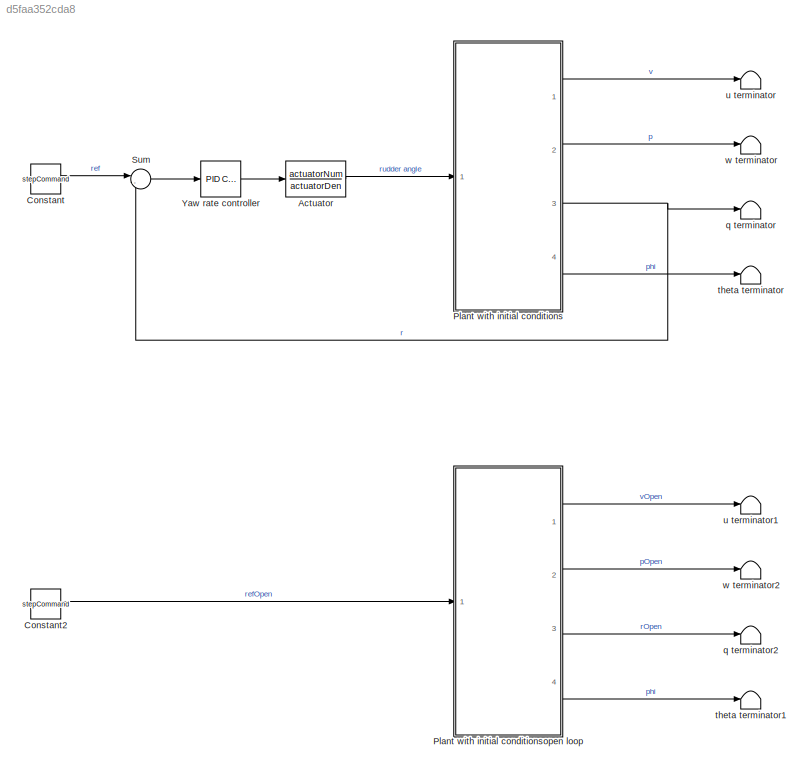
MODEL slx_d5faa352cda8
KIND model
CONFIG AbsTol = auto
CONFIG EnableMultiTasking = off
CONFIG FixedStep = auto
CONFIG MaxStep = auto
CONFIG MinStep = auto
CONFIG RelTol = 1e-3
CONFIG SampleTimeConstraint = Unconstrained
CONFIG SolverName = ode15s
CONFIG StartTime = 0.0
CONFIG StopTime = 2.5
BLOCK [TransferFcn] Actuator
  Denominator = actuatorDen
  Numerator = actuatorNum
BLOCK [Constant] Constant
  NameLocation = top
  Value = stepCommand
BLOCK [Constant] Constant2
  NameLocation = top
  Value = stepCommand
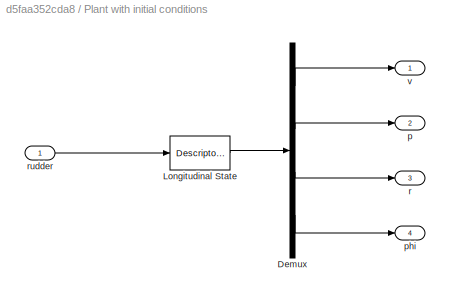
BLOCK [SubSystem] Plant with initial conditions
  Ports = [1, 4]
  RequestExecContextInheritance = off
BLOCK [Demux] Plant with initial conditions/Demux
  Ports = [1, 4]
BLOCK [DescriptorStateSpace] Plant with initial conditions/Longitudinal State 
  A = ALat
  B = BLat
  C = CLat
  ContinuousStateAttributes = 'LateralSystem'
  D = DLat
  E = ELat
  InitialCondition = InitialConditions
  Ports = [1, 1]
BLOCK [Outport] Plant with initial conditions/p
  Port = 2
BLOCK [Outport] Plant with initial conditions/phi
  Port = 4
BLOCK [Outport] Plant with initial conditions/r
  Port = 3
BLOCK [Inport] Plant with initial conditions/rudder
BLOCK [Outport] Plant with initial conditions/v
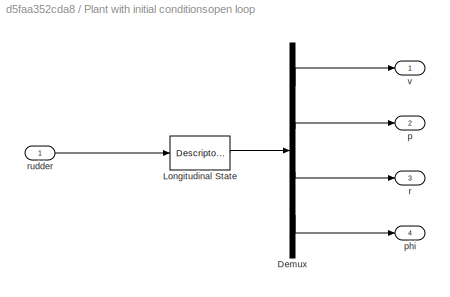
BLOCK [SubSystem] Plant with initial conditionsopen loop
  Ports = [1, 4]
  RequestExecContextInheritance = off
BLOCK [Demux] Plant with initial conditionsopen loop/Demux
  Ports = [1, 4]
BLOCK [DescriptorStateSpace] Plant with initial conditionsopen loop/Longitudinal State 
  A = ALat
  B = BLat
  C = CLat
  ContinuousStateAttributes = 'LongitudinalSystem'
  D = DLat
  E = ELat
  InitialCondition = InitialConditions
  Ports = [1, 1]
BLOCK [Outport] Plant with initial conditionsopen loop/p
  Port = 2
BLOCK [Outport] Plant with initial conditionsopen loop/phi
  Port = 4
BLOCK [Outport] Plant with initial conditionsopen loop/r
  Port = 3
BLOCK [Inport] Plant with initial conditionsopen loop/rudder
BLOCK [Outport] Plant with initial conditionsopen loop/v
BLOCK [Sum] Sum
  Inputs = |-+
  Ports = [2, 1]
BLOCK [Reference] Yaw rate controller  REF=slpidlib/PID Controller
  Ports = [1, 1]
  SourceBlock = slpidlib/PID Controller
  SourceProductBaseCode = SL
  SourceType = PID 1dof
BLOCK [Terminator] q terminator
BLOCK [Terminator] q terminator2
BLOCK [Terminator] theta terminator
BLOCK [Terminator] theta terminator1
BLOCK [Terminator] u terminator
BLOCK [Terminator] u terminator1
BLOCK [Terminator] w terminator
BLOCK [Terminator] w terminator2
LINE Actuator:1 -> Plant with initial conditions:1
LINE Constant2:1 -> Plant with initial conditionsopen loop:1
LINE Constant:1 -> Sum:1
LINE Plant with initial conditions/Demux:1 -> Plant with initial conditions/v:1
LINE Plant with initial conditions/Demux:2 -> Plant with initial conditions/p:1
LINE Plant with initial conditions/Demux:3 -> Plant with initial conditions/r:1
LINE Plant with initial conditions/Demux:4 -> Plant with initial conditions/phi:1
LINE Plant with initial conditions/Longitudinal State :1 -> Plant with initial conditions/Demux:1
LINE Plant with initial conditions/rudder:1 -> Plant with initial conditions/Longitudinal State :1
LINE Plant with initial conditions:1 -> u terminator:1
LINE Plant with initial conditions:2 -> w terminator:1
NET Plant with initial conditions:3 -> Sum:2, q terminator:1
LINE Plant with initial conditions:4 -> theta terminator:1
LINE Plant with initial conditionsopen loop/Demux:1 -> Plant with initial conditionsopen loop/v:1
LINE Plant with initial conditionsopen loop/Demux:2 -> Plant with initial conditionsopen loop/p:1
LINE Plant with initial conditionsopen loop/Demux:3 -> Plant with initial conditionsopen loop/r:1
LINE Plant with initial conditionsopen loop/Demux:4 -> Plant with initial conditionsopen loop/phi:1
LINE Plant with initial conditionsopen loop/Longitudinal State :1 -> Plant with initial conditionsopen loop/Demux:1
LINE Plant with initial conditionsopen loop/rudder:1 -> Plant with initial conditionsopen loop/Longitudinal State :1
LINE Plant with initial conditionsopen loop:1 -> u terminator1:1
LINE Plant with initial conditionsopen loop:2 -> w terminator2:1
LINE Plant with initial conditionsopen loop:3 -> q terminator2:1
LINE Plant with initial conditionsopen loop:4 -> theta terminator1:1
LINE Sum:1 -> Yaw rate controller:1
LINE Yaw rate controller:1 -> Actuator:1
note: NET lines group one-source signal fan-out (src -> all destinations, sorted); 1:1 wires keep LINE
